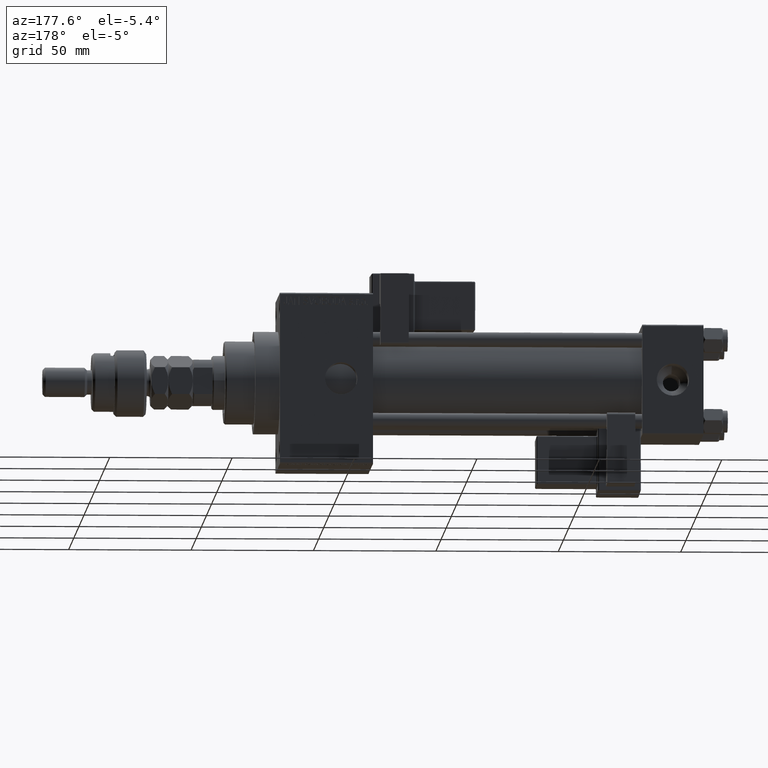
[diagram: clean part render]
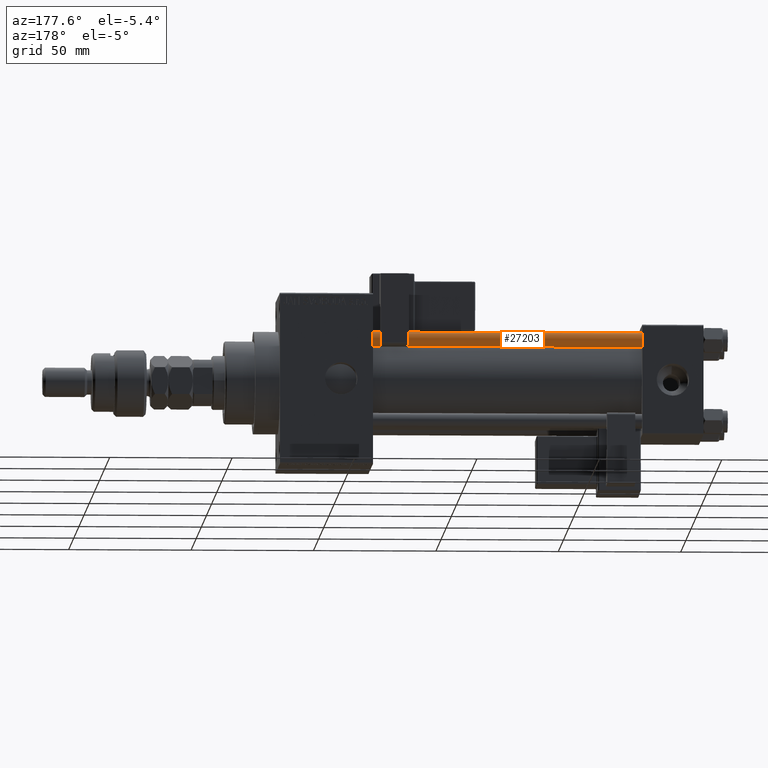
[diagram: same view with one face highlighted and labeled with its STEP entity id]
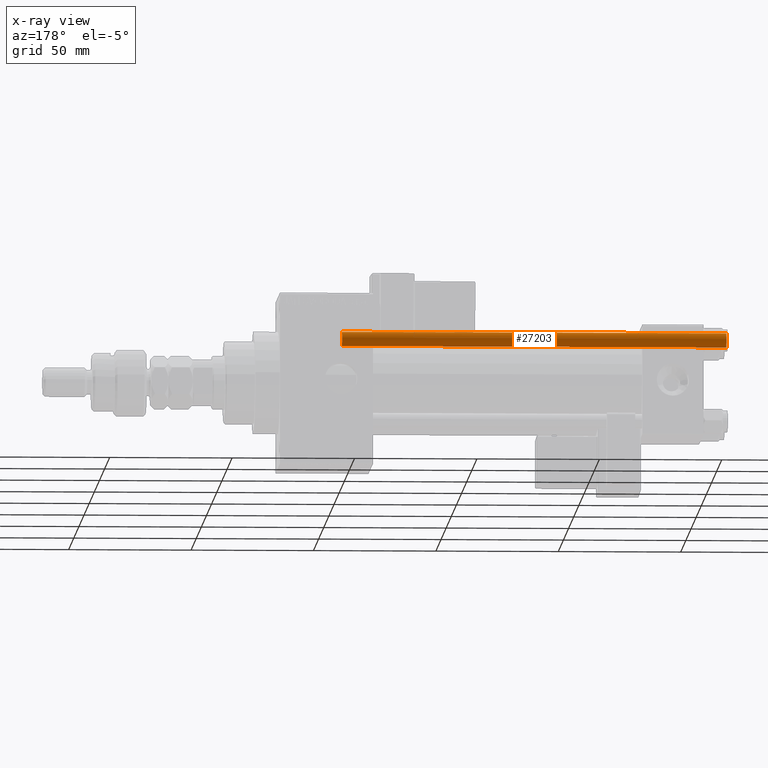
[diagram: x-ray of the same camera — body ghosted, the highlighted face saturated]
A machine part, auxiliary view. The second image highlights one B-rep face of the part: STEP entity #27203.
The next image is the same camera in x-ray: the body ghosted, the highlighted face saturated — about 0% of this face is hidden behind the body in this view.
In plain terms, the highlighted cylindrical surface (edge-blend (fillet) strip) has radius 3 mm, axis along (-1, -0, 0).
Its self-contained STEP definition (entity closure, byte-faithful):
#302 = AXIS2_PLACEMENT_3D ( 'NONE', #26698, #39314, #40132 ) ;
#681 = VERTEX_POINT ( 'NONE', #2723 ) ;
#745 = DIRECTION ( 'NONE',  ( 0.000000000000000000, 0.000000000000000000, -1.000000000000000000 ) ) ;
#1097 = ORIENTED_EDGE ( 'NONE', *, *, #48691, .T. ) ;
#2723 = CARTESIAN_POINT ( 'NONE',  ( -3.000000000000000444, 0.000000000000000000, 157.5000000000000000 ) ) ;
#6168 = AXIS2_PLACEMENT_3D ( 'NONE', #53579, #23458, #16010 ) ;
#6951 = VECTOR ( 'NONE', #44148, 1000.000000000000000 ) ;
#10120 = VERTEX_POINT ( 'NONE', #38515 ) ;
#12670 = ORIENTED_EDGE ( 'NONE', *, *, #42745, .T. ) ;
#16010 = DIRECTION ( 'NONE',  ( 1.000000000000000000, 0.000000000000000000, 0.000000000000000000 ) ) ;
#16109 = ORIENTED_EDGE ( 'NONE', *, *, #26111, .T. ) ;
#19202 = VERTEX_POINT ( 'NONE', #36117 ) ;
#20797 = CARTESIAN_POINT ( 'NONE',  ( 3.000000000000000444, 3.673940397442060361E-16, 157.5000000000000000 ) ) ;
#21571 = DIRECTION ( 'NONE',  ( 1.000000000000000000, 0.000000000000000000, 0.000000000000000000 ) ) ;
#22170 = CIRCLE ( 'NONE', #52824, 3.000000000000000444 ) ;
#22999 = VECTOR ( 'NONE', #42668, 1000.000000000000000 ) ;
#23403 = FACE_OUTER_BOUND ( 'NONE', #27154, .T. ) ;
#23458 = DIRECTION ( 'NONE',  ( -0.000000000000000000, -0.000000000000000000, 1.000000000000000000 ) ) ;
#24662 = ORIENTED_EDGE ( 'NONE', *, *, #41365, .F. ) ;
#26111 = EDGE_CURVE ( 'NONE', #51802, #10120, #51431, .T. ) ;
#26698 = CARTESIAN_POINT ( 'NONE',  ( 0.000000000000000000, 0.000000000000000000, 158.0000000000000000 ) ) ;
#27154 = EDGE_LOOP ( 'NONE', ( #1097, #16109, #12670, #24662 ) ) ;
#27203 = ADVANCED_FACE ( 'NONE', ( #23403 ), #27235, .T. ) ;
#27235 = CYLINDRICAL_SURFACE ( 'NONE', #302, 3.000000000000000444 ) ;
#29536 = CARTESIAN_POINT ( 'NONE',  ( 0.000000000000000000, 0.000000000000000000, 157.5000000000000000 ) ) ;
#30993 = LINE ( 'NONE', #39493, #6951 ) ;
#33905 = CARTESIAN_POINT ( 'NONE',  ( 3.000000000000000444, 3.673940397442060361E-16, 158.0000000000000000 ) ) ;
#36117 = CARTESIAN_POINT ( 'NONE',  ( -3.000000000000000444, 0.000000000000000000, 0.5000000000000281997 ) ) ;
#38515 = CARTESIAN_POINT ( 'NONE',  ( 3.000000000000000444, 3.673940397442060361E-16, 0.5000000000000281997 ) ) ;
#39314 = DIRECTION ( 'NONE',  ( -0.000000000000000000, -0.000000000000000000, -1.000000000000000000 ) ) ;
#39493 = CARTESIAN_POINT ( 'NONE',  ( -3.000000000000000444, 0.000000000000000000, 158.0000000000000000 ) ) ;
#40132 = DIRECTION ( 'NONE',  ( -1.000000000000000000, 0.000000000000000000, 0.000000000000000000 ) ) ;
#41365 = EDGE_CURVE ( 'NONE', #681, #19202, #30993, .T. ) ;
#42668 = DIRECTION ( 'NONE',  ( -0.000000000000000000, -0.000000000000000000, -1.000000000000000000 ) ) ;
#42745 = EDGE_CURVE ( 'NONE', #10120, #19202, #50819, .T. ) ;
#44148 = DIRECTION ( 'NONE',  ( -0.000000000000000000, -0.000000000000000000, -1.000000000000000000 ) ) ;
#48691 = EDGE_CURVE ( 'NONE', #681, #51802, #22170, .T. ) ;
#50819 = CIRCLE ( 'NONE', #6168, 3.000000000000000444 ) ;
#51431 = LINE ( 'NONE', #33905, #22999 ) ;
#51802 = VERTEX_POINT ( 'NONE', #20797 ) ;
#52824 = AXIS2_PLACEMENT_3D ( 'NONE', #29536, #745, #21571 ) ;
#53579 = CARTESIAN_POINT ( 'NONE',  ( 0.000000000000000000, 0.000000000000000000, 0.5000000000000281997 ) ) ;